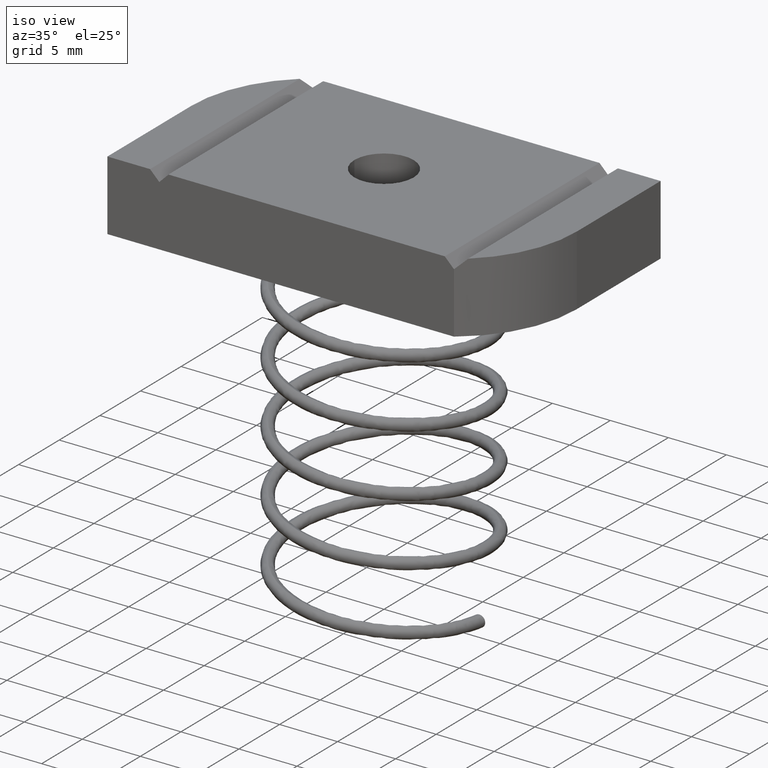
[diagram: clean part render]
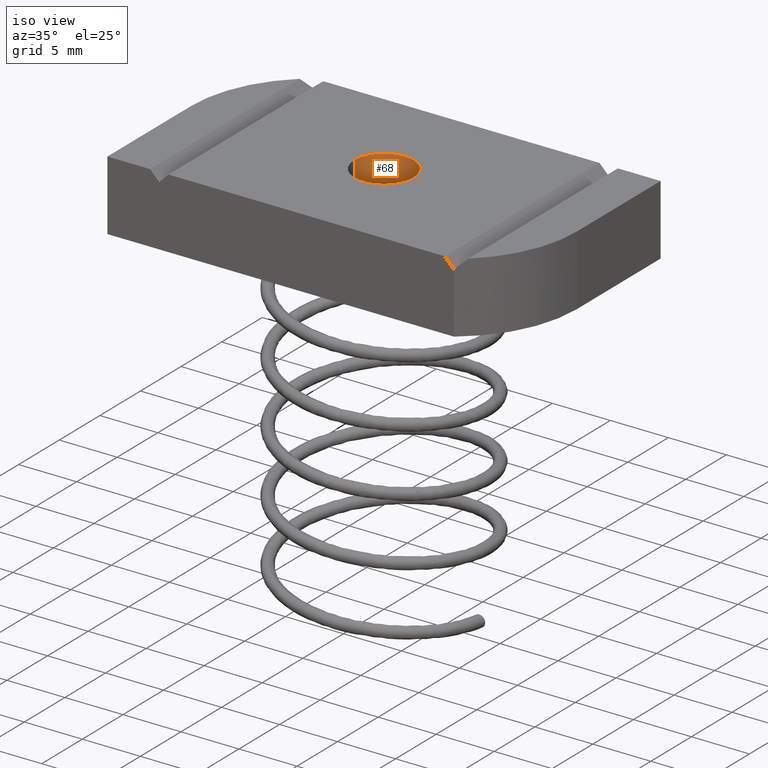
[diagram: same view with one face highlighted and labeled with its STEP entity id]
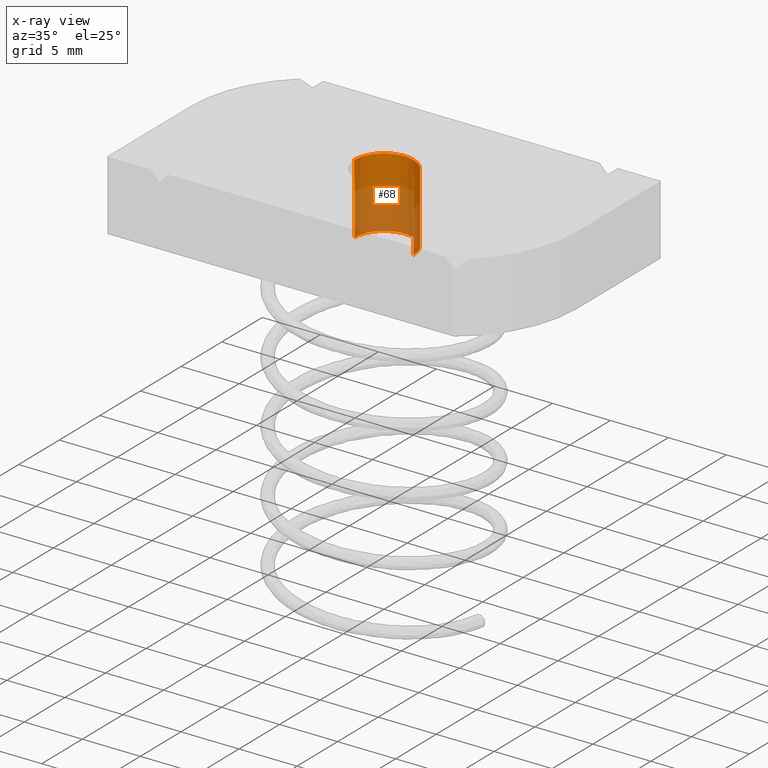
[diagram: x-ray of the same camera — body ghosted, the highlighted face saturated]
A machine part, iso view. The second image highlights one B-rep face of the part: STEP entity #68.
The next image is the same camera in x-ray: the body ghosted, the highlighted face saturated — about 59% of this face is hidden behind the body in this view.
In plain terms, the highlighted cylindrical surface (edge-blend (fillet) strip) has radius 2.5527 mm, axis along (-0, -0, 1).
Its self-contained STEP definition (entity closure, byte-faithful):
#2 = ORIENTED_EDGE ( 'NONE', *, *, #2660, .F. ) ;
#3 = ORIENTED_EDGE ( 'NONE', *, *, #132, .T. ) ;
#6 = ORIENTED_EDGE ( 'NONE', *, *, #2655, .T. ) ;
#26 = ORIENTED_EDGE ( 'NONE', *, *, #129, .F. ) ;
#68 = ADVANCED_FACE ( 'NONE', ( #1163 ), #1166, .F. ) ;
#111 = AXIS2_PLACEMENT_3D ( 'NONE', #2552, #2564, #2570 ) ;
#129 = EDGE_CURVE ( 'NONE', #2602, #2576, #1995, .T. ) ;
#132 = EDGE_CURVE ( 'NONE', #2593, #2588, #2009, .T. ) ;
#221 = CIRCLE ( 'NONE', #2542, 0.1004999999999995200 ) ;
#227 = CIRCLE ( 'NONE', #2540, 0.1004999999999999600 ) ;
#1025 = CARTESIAN_POINT ( 'NONE',  ( -0.1004999999999997400, 1.230770033143086600E-017, 0.1189999999999999900 ) ) ;
#1026 = DIRECTION ( 'NONE',  ( -0.0000000000000000000, -0.0000000000000000000, 1.000000000000000000 ) ) ;
#1031 = CARTESIAN_POINT ( 'NONE',  ( 0.1004999999999997400, 0.0000000000000000000, 0.1189999999999999900 ) ) ;
#1032 = DIRECTION ( 'NONE',  ( -0.0000000000000000000, -0.0000000000000000000, 1.000000000000000000 ) ) ;
#1062 = CARTESIAN_POINT ( 'NONE',  ( -0.1004999999999995200, 1.230770033143085600E-017, 0.1190000000000000500 ) ) ;
#1086 = CARTESIAN_POINT ( 'NONE',  ( 0.1004999999999995200, 0.0000000000000000000, 0.1190000000000000500 ) ) ;
#1089 = CARTESIAN_POINT ( 'NONE',  ( 0.1004999999999999600, 0.0000000000000000000, -0.1189999999999999900 ) ) ;
#1095 = CARTESIAN_POINT ( 'NONE',  ( -0.1004999999999999600, 1.230770033143089400E-017, -0.1189999999999999900 ) ) ;
#1109 = CARTESIAN_POINT ( 'NONE',  ( 0.0000000000000000000, 0.0000000000000000000, 0.1190000000000000500 ) ) ;
#1111 = DIRECTION ( 'NONE',  ( -0.0000000000000000000, -0.0000000000000000000, 1.000000000000000000 ) ) ;
#1112 = DIRECTION ( 'NONE',  ( 1.000000000000000000, 0.0000000000000000000, 0.0000000000000000000 ) ) ;
#1116 = CARTESIAN_POINT ( 'NONE',  ( 0.0000000000000000000, 0.0000000000000000000, -0.1189999999999999900 ) ) ;
#1122 = DIRECTION ( 'NONE',  ( -0.0000000000000000000, -0.0000000000000000000, 1.000000000000000000 ) ) ;
#1123 = DIRECTION ( 'NONE',  ( 1.000000000000000000, 0.0000000000000000000, 0.0000000000000000000 ) ) ;
#1163 = FACE_OUTER_BOUND ( 'NONE', #2035, .T. ) ;
#1166 = CYLINDRICAL_SURFACE ( 'NONE', #111, 0.1004999999999997400 ) ;
#1995 = LINE ( 'NONE', #1025, #1997 ) ;
#1997 = VECTOR ( 'NONE', #1026, 39.37007874015748100 ) ;
#2009 = LINE ( 'NONE', #1031, #2010 ) ;
#2010 = VECTOR ( 'NONE', #1032, 39.37007874015748100 ) ;
#2035 = EDGE_LOOP ( 'NONE', ( #26, #2, #3, #6 ) ) ;
#2540 = AXIS2_PLACEMENT_3D ( 'NONE', #1116, #1122, #1123 ) ;
#2542 = AXIS2_PLACEMENT_3D ( 'NONE', #1109, #1111, #1112 ) ;
#2552 = CARTESIAN_POINT ( 'NONE',  ( 0.0000000000000000000, 0.0000000000000000000, 0.1189999999999999900 ) ) ;
#2564 = DIRECTION ( 'NONE',  ( -0.0000000000000000000, -0.0000000000000000000, 1.000000000000000000 ) ) ;
#2570 = DIRECTION ( 'NONE',  ( 1.000000000000000000, 0.0000000000000000000, 0.0000000000000000000 ) ) ;
#2576 = VERTEX_POINT ( 'NONE', #1062 ) ;
#2588 = VERTEX_POINT ( 'NONE', #1086 ) ;
#2593 = VERTEX_POINT ( 'NONE', #1089 ) ;
#2602 = VERTEX_POINT ( 'NONE', #1095 ) ;
#2655 = EDGE_CURVE ( 'NONE', #2588, #2576, #221, .T. ) ;
#2660 = EDGE_CURVE ( 'NONE', #2593, #2602, #227, .T. ) ;